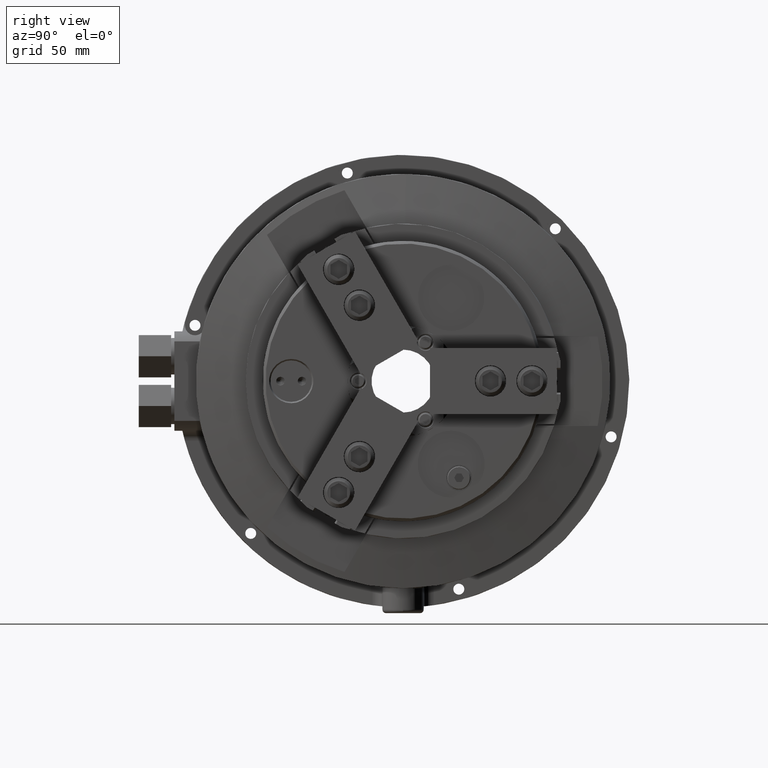
[diagram: clean part render]
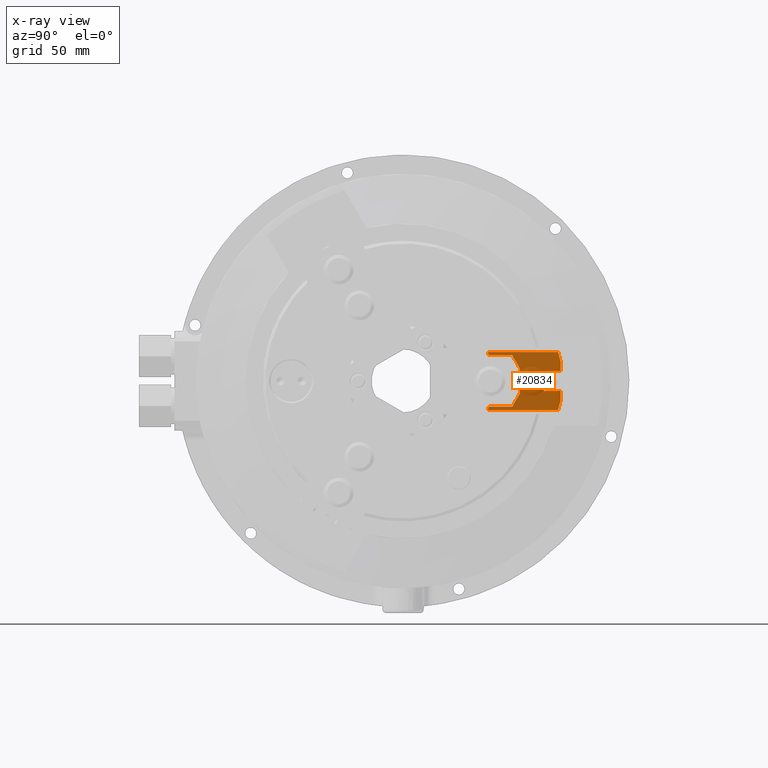
[diagram: x-ray — body ghosted, one internal face saturated and labeled with its STEP entity id]
A machine part, right view, then the same camera in x-ray: the body is ghosted and one INTERNAL B-rep face — a face not visible from any outside direction — is saturated and labeled: STEP entity #20834.
In plain terms, the highlighted planar face has unit normal (1, 0, 0).
Its self-contained STEP definition (entity closure, byte-faithful):
#1257=LINE('',#35250,#3158);
#1258=LINE('',#35255,#3159);
#1259=LINE('',#35257,#3160);
#1260=LINE('',#35259,#3161);
#1261=LINE('',#35261,#3162);
#1262=LINE('',#35263,#3163);
#1263=LINE('',#35267,#3164);
#1264=LINE('',#35269,#3165);
#1265=LINE('',#35271,#3166);
#1266=LINE('',#35273,#3167);
#1267=LINE('',#35275,#3168);
#1268=LINE('',#35277,#3169);
#1269=LINE('',#35279,#3170);
#1270=LINE('',#35281,#3171);
#1271=LINE('',#35283,#3172);
#1272=LINE('',#35285,#3173);
#3158=VECTOR('',#25392,1000.);
#3159=VECTOR('',#25395,1000.);
#3160=VECTOR('',#25396,1000.);
#3161=VECTOR('',#25397,1000.);
#3162=VECTOR('',#25398,1000.);
#3163=VECTOR('',#25399,1000.);
#3164=VECTOR('',#25402,1000.);
#3165=VECTOR('',#25403,1000.);
#3166=VECTOR('',#25404,1000.);
#3167=VECTOR('',#25405,1000.);
#3168=VECTOR('',#25406,1000.);
#3169=VECTOR('',#25407,1000.);
#3170=VECTOR('',#25408,1000.);
#3171=VECTOR('',#25409,1000.);
#3172=VECTOR('',#25410,1000.);
#3173=VECTOR('',#25411,1000.);
#5905=ORIENTED_EDGE('',*,*,#11211,.F.);
#5906=ORIENTED_EDGE('',*,*,#11212,.T.);
#5907=ORIENTED_EDGE('',*,*,#11213,.F.);
#5908=ORIENTED_EDGE('',*,*,#11214,.T.);
#5909=ORIENTED_EDGE('',*,*,#11215,.T.);
#5910=ORIENTED_EDGE('',*,*,#11216,.F.);
#5911=ORIENTED_EDGE('',*,*,#11217,.T.);
#5912=ORIENTED_EDGE('',*,*,#11218,.T.);
#5913=ORIENTED_EDGE('',*,*,#11219,.F.);
#5914=ORIENTED_EDGE('',*,*,#11220,.F.);
#5915=ORIENTED_EDGE('',*,*,#11221,.F.);
#5916=ORIENTED_EDGE('',*,*,#11222,.T.);
#5917=ORIENTED_EDGE('',*,*,#11223,.T.);
#5918=ORIENTED_EDGE('',*,*,#11224,.F.);
#5919=ORIENTED_EDGE('',*,*,#11225,.F.);
#5920=ORIENTED_EDGE('',*,*,#11226,.F.);
#5921=ORIENTED_EDGE('',*,*,#11227,.T.);
#5922=ORIENTED_EDGE('',*,*,#11228,.T.);
#11211=EDGE_CURVE('',#13951,#13952,#1257,.T.);
#11212=EDGE_CURVE('',#13951,#13953,#15621,.T.);
#11213=EDGE_CURVE('',#13954,#13953,#1258,.T.);
#11214=EDGE_CURVE('',#13954,#13955,#1259,.T.);
#11215=EDGE_CURVE('',#13955,#13956,#1260,.T.);
#11216=EDGE_CURVE('',#13957,#13956,#1261,.T.);
#11217=EDGE_CURVE('',#13957,#13958,#1262,.T.);
#11218=EDGE_CURVE('',#13958,#13959,#15622,.T.);
#11219=EDGE_CURVE('',#13960,#13959,#1263,.T.);
#11220=EDGE_CURVE('',#13961,#13960,#1264,.T.);
#11221=EDGE_CURVE('',#13962,#13961,#1265,.T.);
#11222=EDGE_CURVE('',#13962,#13963,#1266,.T.);
#11223=EDGE_CURVE('',#13963,#13964,#1267,.T.);
#11224=EDGE_CURVE('',#13965,#13964,#1268,.T.);
#11225=EDGE_CURVE('',#13966,#13965,#1269,.T.);
#11226=EDGE_CURVE('',#13967,#13966,#1270,.T.);
#11227=EDGE_CURVE('',#13967,#13968,#1271,.T.);
#11228=EDGE_CURVE('',#13968,#13952,#1272,.T.);
#13951=VERTEX_POINT('',#35251);
#13952=VERTEX_POINT('',#35252);
#13953=VERTEX_POINT('',#35254);
#13954=VERTEX_POINT('',#35256);
#13955=VERTEX_POINT('',#35258);
#13956=VERTEX_POINT('',#35260);
#13957=VERTEX_POINT('',#35262);
#13958=VERTEX_POINT('',#35264);
#13959=VERTEX_POINT('',#35266);
#13960=VERTEX_POINT('',#35268);
#13961=VERTEX_POINT('',#35270);
#13962=VERTEX_POINT('',#35272);
#13963=VERTEX_POINT('',#35274);
#13964=VERTEX_POINT('',#35276);
#13965=VERTEX_POINT('',#35278);
#13966=VERTEX_POINT('',#35280);
#13967=VERTEX_POINT('',#35282);
#13968=VERTEX_POINT('',#35284);
#15621=CIRCLE('',#22345,54.);
#15622=CIRCLE('',#22346,54.);
#16589=EDGE_LOOP('',(#5905,#5906,#5907,#5908,#5909,#5910,#5911,#5912,#5913,
#5914,#5915,#5916,#5917,#5918,#5919,#5920,#5921,#5922));
#18341=FACE_BOUND('',#16589,.T.);
#19934=PLANE('',#22344);
#20834=ADVANCED_FACE('',(#18341),#19934,.F.);
#22344=AXIS2_PLACEMENT_3D('',#35249,#25390,#25391);
#22345=AXIS2_PLACEMENT_3D('',#35253,#25393,#25394);
#22346=AXIS2_PLACEMENT_3D('',#35265,#25400,#25401);
#25390=DIRECTION('',(1.,0.,0.));
#25391=DIRECTION('',(0.,0.,-1.));
#25392=DIRECTION('',(0.,1.,0.));
#25393=DIRECTION('',(1.,0.,0.));
#25394=DIRECTION('',(0.,0.,-1.));
#25395=DIRECTION('',(0.,-1.,0.));
#25396=DIRECTION('',(0.,0.499999999999999,0.866025403784439));
#25397=DIRECTION('',(0.,0.,1.));
#25398=DIRECTION('',(0.,0.499999999999999,-0.866025403784439));
#25399=DIRECTION('',(0.,-1.,0.));
#25400=DIRECTION('',(1.,0.,0.));
#25401=DIRECTION('',(0.,0.,-1.));
#25402=DIRECTION('',(0.,-1.,0.));
#25403=DIRECTION('',(0.,-1.,0.));
#25404=DIRECTION('',(0.,-0.258819045102514,0.96592582628907));
#25405=DIRECTION('',(0.,0.,-1.));
#25406=DIRECTION('',(0.,-1.,8.67361737988404E-17));
#25407=DIRECTION('',(0.,0.,1.));
#25408=DIRECTION('',(0.,-1.,-8.67361737988404E-17));
#25409=DIRECTION('',(0.,0.,1.));
#25410=DIRECTION('',(0.,-0.258819045102514,-0.96592582628907));
#25411=DIRECTION('',(0.,-1.,0.));
#35249=CARTESIAN_POINT('',(-30.,95.,-15.5));
#35250=CARTESIAN_POINT('',(-30.,115.,-17.5));
#35251=CARTESIAN_POINT('',(-30.,51.085712288271,-17.5));
#35252=CARTESIAN_POINT('',(-30.,83.1790237980706,-17.5));
#35253=CARTESIAN_POINT('',(-30.,0.,0.));
#35254=CARTESIAN_POINT('',(-30.,51.7276521794678,-15.5));
#35255=CARTESIAN_POINT('',(-30.,95.,-15.5));
#35256=CARTESIAN_POINT('',(-30.,65.8811978464831,-15.5));
#35257=CARTESIAN_POINT('',(-30.,65.8811978464831,-15.5));
#35258=CARTESIAN_POINT('',(-30.,70.5,-7.5));
#35259=CARTESIAN_POINT('',(-30.,70.5,-26.));
#35260=CARTESIAN_POINT('',(-30.,70.5,7.5));
#35261=CARTESIAN_POINT('',(-30.,65.8811978464831,15.5));
#35262=CARTESIAN_POINT('',(-30.,65.8811978464831,15.5));
#35263=CARTESIAN_POINT('',(-30.,95.,15.5));
#35264=CARTESIAN_POINT('',(-30.,51.7276521794678,15.5));
#35265=CARTESIAN_POINT('',(-30.,0.,0.));
#35266=CARTESIAN_POINT('',(-30.,51.085712288271,17.5));
#35267=CARTESIAN_POINT('',(-30.,95.,17.5));
#35268=CARTESIAN_POINT('',(-30.,83.1790237980706,17.5));
#35269=CARTESIAN_POINT('',(-30.,95.,17.5));
#35270=CARTESIAN_POINT('',(-30.,93.5262794416289,17.5));
#35271=CARTESIAN_POINT('',(-30.,94.125,15.2655444566228));
#35272=CARTESIAN_POINT('',(-30.,95.,12.));
#35273=CARTESIAN_POINT('',(-30.,95.,26.));
#35274=CARTESIAN_POINT('',(-30.,95.,6.));
#35275=CARTESIAN_POINT('',(-30.,95.,6.));
#35276=CARTESIAN_POINT('',(-30.,85.,6.));
#35277=CARTESIAN_POINT('',(-30.,85.,5.38588873252141E-15));
#35278=CARTESIAN_POINT('',(-30.,85.,-6.));
#35279=CARTESIAN_POINT('',(-30.,95.,-6.));
#35280=CARTESIAN_POINT('',(-30.,95.,-6.));
#35281=CARTESIAN_POINT('',(-30.,95.,-26.));
#35282=CARTESIAN_POINT('',(-30.,95.,-12.));
#35283=CARTESIAN_POINT('',(-30.,94.125,-15.2655444566228));
#35284=CARTESIAN_POINT('',(-30.,93.5262794416289,-17.5));
#35285=CARTESIAN_POINT('',(-30.,95.,-17.5));